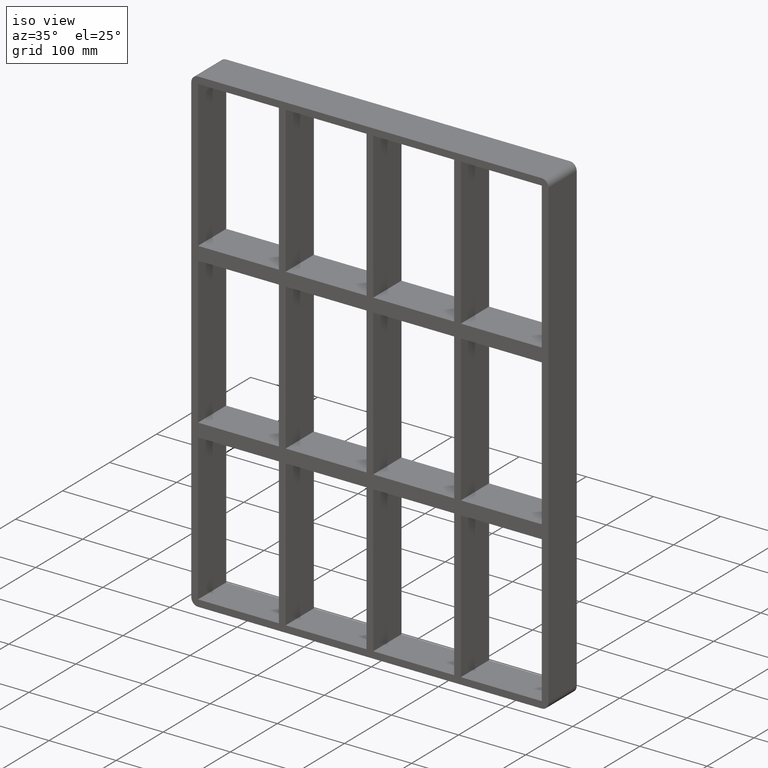
[diagram: clean part render]
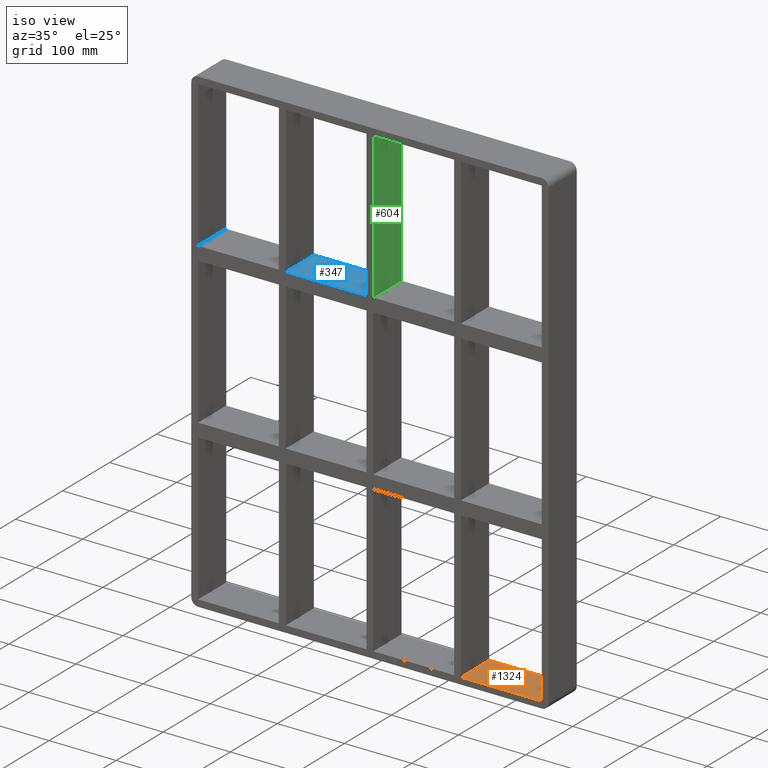
[diagram: same view with three faces highlighted in distinct colors, each labeled with its STEP entity id]
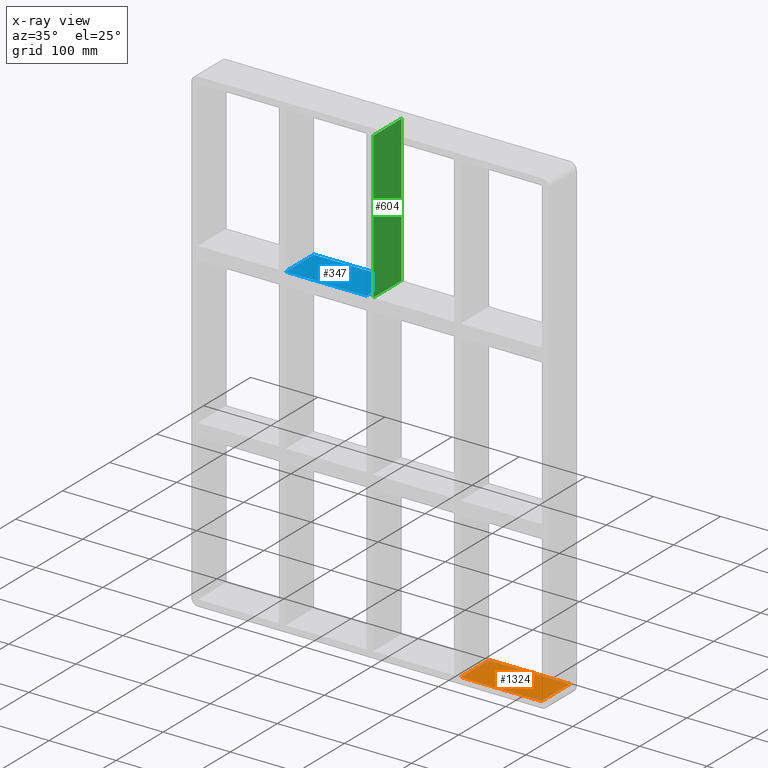
[diagram: x-ray of the same camera — body ghosted, the three highlighted faces saturated]
A machine part, iso view with three faces highlighted in distinct colors.
The next image is the same camera in x-ray (body ghosted, the three faces saturated) — at least one of them is partly hidden behind the body in this view.
Their STEP definitions:

[orange] entity #1324 — the highlighted planar face has unit normal (0, 0, -1).
#1005=CARTESIAN_POINT('',(135.50000000000728,57.0,-346.99999999998403));
#1006=VERTEX_POINT('',#1005);
#1007=CARTESIAN_POINT('',(256.0,57.0,-346.99999999999994));
#1008=VERTEX_POINT('',#1007);
#1009=CARTESIAN_POINT('',(135.50000000000728,57.0,-346.99999999999994));
#1010=DIRECTION('',(1.0,0.0,0.0));
#1011=VECTOR('',#1010,120.49999999999272);
#1012=LINE('',#1009,#1011);
#1013=EDGE_CURVE('',#1006,#1008,#1012,.T.);
#1132=CARTESIAN_POINT('',(135.50000000000728,-3.0,-346.99999999998408));
#1133=VERTEX_POINT('',#1132);
#1140=CARTESIAN_POINT('',(135.50000000000728,57.000000000000007,-346.99999999999994));
#1141=DIRECTION('',(0.0,-1.0,0.0));
#1142=VECTOR('',#1141,60.000000000000007);
#1143=LINE('',#1140,#1142);
#1144=EDGE_CURVE('',#1006,#1133,#1143,.T.);
#1301=CARTESIAN_POINT('',(256.0,0.0,-346.99999999999994));
#1302=DIRECTION('',(0.0,0.0,-1.0));
#1303=DIRECTION('',(-1.0,0.0,0.0));
#1304=AXIS2_PLACEMENT_3D('',#1301,#1302,#1303);
#1305=PLANE('',#1304);
#1306=ORIENTED_EDGE('',*,*,#1144,.T.);
#1307=CARTESIAN_POINT('',(256.0,-3.0,-346.99999999999994));
#1308=VERTEX_POINT('',#1307);
#1309=CARTESIAN_POINT('',(256.0,-3.0,-346.99999999999994));
#1310=DIRECTION('',(-1.0,0.0,0.0));
#1311=VECTOR('',#1310,120.49999999999272);
#1312=LINE('',#1309,#1311);
#1313=EDGE_CURVE('',#1308,#1133,#1312,.T.);
#1314=ORIENTED_EDGE('',*,*,#1313,.F.);
#1315=CARTESIAN_POINT('',(256.0,57.0,-346.99999999999994));
#1316=DIRECTION('',(0.0,-1.0,0.0));
#1317=VECTOR('',#1316,60.0);
#1318=LINE('',#1315,#1317);
#1319=EDGE_CURVE('',#1008,#1308,#1318,.T.);
#1320=ORIENTED_EDGE('',*,*,#1319,.F.);
#1321=ORIENTED_EDGE('',*,*,#1013,.F.);
#1322=EDGE_LOOP('',(#1306,#1314,#1320,#1321));
#1323=FACE_OUTER_BOUND('',#1322,.T.);
#1324=ADVANCED_FACE('',(#1323),#1305,.F.);

[blue] entity #347 — the highlighted planar face has unit normal (0, 0, 1).
#308=CARTESIAN_POINT('',(-255.99999999999969,-3.0,128.99999999999994));
#309=DIRECTION('',(0.0,0.0,1.0));
#310=DIRECTION('',(1.0,0.0,0.0));
#311=AXIS2_PLACEMENT_3D('',#308,#309,#310);
#312=PLANE('',#311);
#313=CARTESIAN_POINT('',(-5.00000000000135,57.0,128.99999999999994));
#314=VERTEX_POINT('',#313);
#315=CARTESIAN_POINT('',(-5.00000000000135,-3.0,128.99999999999994));
#316=VERTEX_POINT('',#315);
#317=CARTESIAN_POINT('',(-5.000000000001368,57.0,128.99999999999997));
#318=DIRECTION('',(0.0,-1.0,0.0));
#319=VECTOR('',#318,60.0);
#320=LINE('',#317,#319);
#321=EDGE_CURVE('',#314,#316,#320,.T.);
#322=ORIENTED_EDGE('',*,*,#321,.F.);
#323=CARTESIAN_POINT('',(-125.49999999999272,57.0,128.99999999999994));
#324=VERTEX_POINT('',#323);
#325=CARTESIAN_POINT('',(-125.49999999999272,57.0,128.99999999999994));
#326=DIRECTION('',(1.0,0.0,0.0));
#327=VECTOR('',#326,120.49999999999139);
#328=LINE('',#325,#327);
#329=EDGE_CURVE('',#324,#314,#328,.T.);
#330=ORIENTED_EDGE('',*,*,#329,.F.);
#331=CARTESIAN_POINT('',(-125.49999999999272,-3.0,128.99999999999994));
#332=VERTEX_POINT('',#331);
#333=CARTESIAN_POINT('',(-125.49999999999272,-3.0,128.99999999999997));
#334=DIRECTION('',(0.0,1.0,0.0));
#335=VECTOR('',#334,60.0);
#336=LINE('',#333,#335);
#337=EDGE_CURVE('',#332,#324,#336,.T.);
#338=ORIENTED_EDGE('',*,*,#337,.F.);
#339=CARTESIAN_POINT('',(-125.49999999999272,-3.0,128.99999999999994));
#340=DIRECTION('',(1.0,0.0,0.0));
#341=VECTOR('',#340,120.49999999999139);
#342=LINE('',#339,#341);
#343=EDGE_CURVE('',#332,#316,#342,.T.);
#344=ORIENTED_EDGE('',*,*,#343,.T.);
#345=EDGE_LOOP('',(#322,#330,#338,#344));
#346=FACE_OUTER_BOUND('',#345,.T.);
#347=ADVANCED_FACE('',(#346),#312,.T.);

[green] entity #604 — the highlighted planar face has unit normal (1, 0, 0).
#363=CARTESIAN_POINT('',(5.000000000007283,57.0,128.99999999999994));
#364=VERTEX_POINT('',#363);
#371=CARTESIAN_POINT('',(5.000000000007283,-3.0,128.99999999999994));
#372=VERTEX_POINT('',#371);
#373=CARTESIAN_POINT('',(5.000000000007283,-3.0,128.99999999999997));
#374=DIRECTION('',(0.0,1.0,0.0));
#375=VECTOR('',#374,60.0);
#376=LINE('',#373,#375);
#377=EDGE_CURVE('',#372,#364,#376,.T.);
#574=CARTESIAN_POINT('',(5.000000000007283,-3.0,347.00000000000011));
#575=DIRECTION('',(1.0,0.0,0.0));
#576=DIRECTION('',(0.0,0.0,-1.0));
#577=AXIS2_PLACEMENT_3D('',#574,#575,#576);
#578=PLANE('',#577);
#579=ORIENTED_EDGE('',*,*,#377,.T.);
#580=CARTESIAN_POINT('',(5.000000000007283,57.0,347.00000000000011));
#581=VERTEX_POINT('',#580);
#582=CARTESIAN_POINT('',(5.000000000007283,57.0,347.00000000000011));
#583=DIRECTION('',(0.0,0.0,-1.0));
#584=VECTOR('',#583,218.00000000000014);
#585=LINE('',#582,#584);
#586=EDGE_CURVE('',#581,#364,#585,.T.);
#587=ORIENTED_EDGE('',*,*,#586,.F.);
#588=CARTESIAN_POINT('',(5.000000000007283,-3.0,347.00000000000011));
#589=VERTEX_POINT('',#588);
#590=CARTESIAN_POINT('',(5.000000000007283,-3.0,347.0));
#591=DIRECTION('',(0.0,1.0,0.0));
#592=VECTOR('',#591,60.000000000000007);
#593=LINE('',#590,#592);
#594=EDGE_CURVE('',#589,#581,#593,.T.);
#595=ORIENTED_EDGE('',*,*,#594,.F.);
#596=CARTESIAN_POINT('',(5.000000000007283,-3.0,347.00000000000011));
#597=DIRECTION('',(0.0,0.0,-1.0));
#598=VECTOR('',#597,218.00000000000014);
#599=LINE('',#596,#598);
#600=EDGE_CURVE('',#589,#372,#599,.T.);
#601=ORIENTED_EDGE('',*,*,#600,.T.);
#602=EDGE_LOOP('',(#579,#587,#595,#601));
#603=FACE_OUTER_BOUND('',#602,.T.);
#604=ADVANCED_FACE('',(#603),#578,.T.);